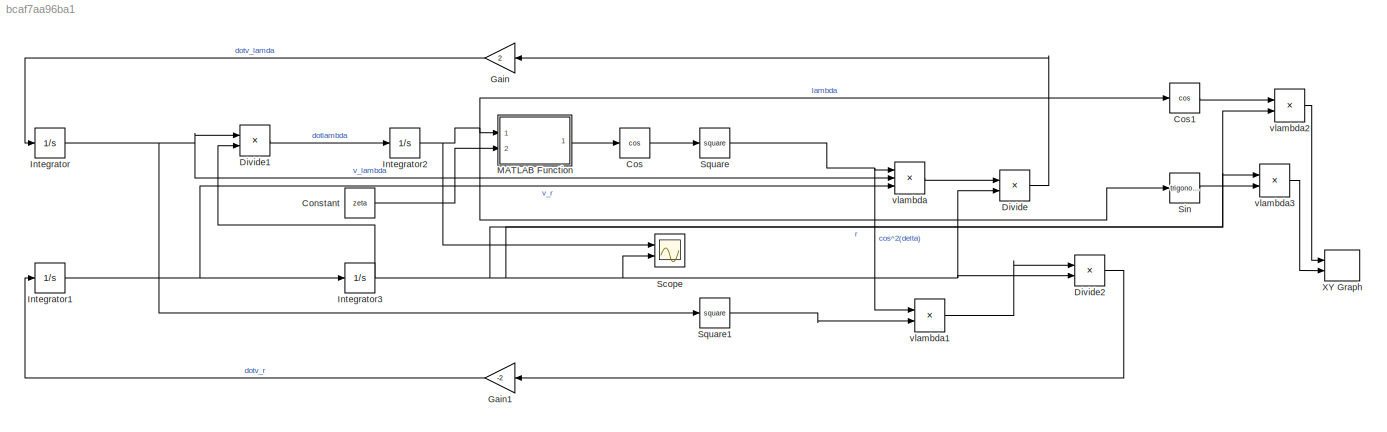
MODEL slx_bcaf7aa96ba1
KIND model
CONFIG AbsTol = auto
CONFIG EnableMultiTasking = off
CONFIG FixedStep = auto
CONFIG MaxStep = auto
CONFIG MinStep = auto
CONFIG RelTol = 1e-3
CONFIG SampleTimeConstraint = Unconstrained
CONFIG SolverName = VariableStepAuto
CONFIG StartTime = 0.0
CONFIG StopTime = 2.8
BLOCK [Constant] Constant
  Value = zeta
BLOCK [Trigonometry] Cos
  Operator = cos
  Ports = [1, 1]
BLOCK [Trigonometry] Cos1
  Operator = cos
  Ports = [1, 1]
BLOCK [Product] Divide
  Inputs = */
  Ports = [2, 1]
BLOCK [Product] Divide1
  Inputs = */
  Ports = [2, 1]
BLOCK [Product] Divide2
  Inputs = */
  Ports = [2, 1]
BLOCK [Gain] Gain
  Gain = 2
BLOCK [Gain] Gain1
  Gain = -2
BLOCK [Integrator] Integrator
  InitialCondition = v_lam0
  Ports = [1, 1]
BLOCK [Integrator] Integrator1
  InitialCondition = v_r0
  Ports = [1, 1]
BLOCK [Integrator] Integrator2
  InitialCondition = lambda0
  Ports = [1, 1]
BLOCK [Integrator] Integrator3
  InitialCondition = r0
  Ports = [1, 1]
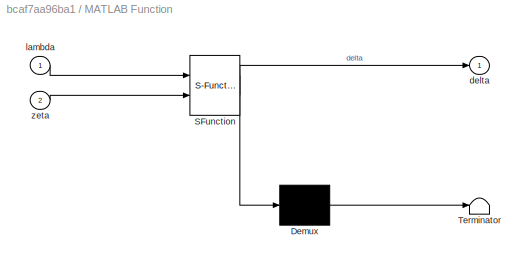
BLOCK [SubSystem] MATLAB Function
  ErrorFcn = Stateflow.Translate.translate
  PermitHierarchicalResolution = ExplicitOnly
  Ports = [2, 1]
  RequestExecContextInheritance = off
  SFBlockType = MATLAB Function
  TreatAsAtomicUnit = on
BLOCK [Demux] MATLAB Function/ Demux 
  Outputs = 1
  Ports = [1, 1]
BLOCK [S-Function] MATLAB Function/ SFunction 
  EnableBusSupport = on
  FunctionName = sf_sfun
  PortCounts = [2 2]
  Ports = [2, 2]
  SFcnIsStateOwnerBlock = off
  SFunctionDeploymentMode = off
  Tag = Stateflow S-Function 2
BLOCK [Terminator] MATLAB Function/ Terminator 
BLOCK [Outport] MATLAB Function/delta
BLOCK [Inport] MATLAB Function/lambda
BLOCK [Inport] MATLAB Function/zeta
  Port = 2
BLOCK [Scope] Scope
  Floating = off
  NumInputPorts = 2
  Ports = [2]
  ScopeSpecificationString = Simulink.scopes.TimeScopeBlockCfg('CurrentConfiguration', extmgr.ConfigurationSet(extmgr.Configuration('Core','General UI',true),extmgr.Configuration('Core','Source UI',true),extmgr.Configuration('Sources','WiredSimulink',true),extmgr.Configuration('Visuals','Time Domain',true,'SerializedDisplays',{struct('MinYLimReal','-4.2046','MaxYLimReal','72.7095','YLabelReal','','MinYLimMag','0.00000','MaxYL...<+1326ch>
BLOCK [Trigonometry] Sin
  Ports = [1, 1]
BLOCK [Math] Square
  Operator = square
  Ports = [1, 1]
BLOCK [Math] Square1
  Operator = square
  Ports = [1, 1]
BLOCK [Record] XY Graph
  CompatibilityTag = XY
  FileSettingsInternal = {"entries":[{"content":{"excelSettings":{"content":{},"type":"Streamout.ExcelSettings"}},"type":"Streamout.FileSettingStorage","uuid":"eb0dca59-41fc-47a4-a85b-fb932ed385e0"}],"packageUris":["http://schema.mathworks.com/mf0/streamout_blocks/R2020a"],"version":"1.0"}
  Layout = [1 1]
  Ports = [2]
  SignalsInternal = {"entries":[{"content":{"signals":[{"content":{"blockPath":["sim/XY Graph"],"channel":[],"dimensions":[1],"domain":"sim/XY Graph","lineColor":"#a2142f","plots":[1],"port":1,"sid":[""],"signalID":354,"signalName":"vlambda2"},"type":"RecordBlkView.Signal","uuid":"2eec6901-5751-4e48-88b2-d0f87884e2de"},{"content":{"blockPath":["sim/XY Graph"],"channel":[],"dimensions":[1],"domain":"sim/XY Graph","lin...<+343ch>
  VisualizationBindings = {"xyplotplugin":{"info":[{"series":[{"bindingParametersList":[{"parameter":"X-Axis","signalID":354,"signalName":"vlambda2"},{"parameter":"Y-Axis","signalID":358,"signalName":"vlambda3"}],"seriesID":13232}],"subplotID":1}]}}
BLOCK [Product] vlambda
  Inputs = 3
  Ports = [3, 1]
BLOCK [Product] vlambda1
  Ports = [2, 1]
BLOCK [Product] vlambda2
  Ports = [2, 1]
BLOCK [Product] vlambda3
  Ports = [2, 1]
LINE Constant:1 -> MATLAB Function:2
LINE Cos1:1 -> vlambda2:1
LINE Cos:1 -> Square:1
LINE Divide1:1 -> Integrator2:1
LINE Divide2:1 -> Gain1:1
LINE Divide:1 -> Gain:1
LINE Gain1:1 -> Integrator1:1
LINE Gain:1 -> Integrator:1
NET Integrator1:1 -> Integrator3:1, vlambda:3
NET Integrator2:1 -> Cos1:1, MATLAB Function:1, Scope:1, Sin:1
NET Integrator3:1 -> Divide1:2, Divide2:2, Divide:2, Scope:2, vlambda2:2, vlambda3:1
NET Integrator:1 -> Divide1:1, Square1:1, vlambda:2
LINE MATLAB Function:1 -> Cos:1
LINE Sin:1 -> vlambda3:2
LINE Square1:1 -> vlambda1:2
NET Square:1 -> vlambda1:1, vlambda:1
LINE vlambda1:1 -> Divide2:1
LINE vlambda2:1 -> XY Graph:1
LINE vlambda3:1 -> XY Graph:2
LINE vlambda:1 -> Divide:1
note: NET lines group one-source signal fan-out (src -> all destinations, sorted); 1:1 wires keep LINE
CHART MATLAB Function states=1 transitions=1
  STATE_LABEL 'eML_blk_kernel()'
  STATE_LABEL 'SCRIPT:\nfunction delta = ret_delta(lambda, zeta)\ndelta = atan(2*(lambda - zeta));\n'
CHART  states=0 transitions=0
